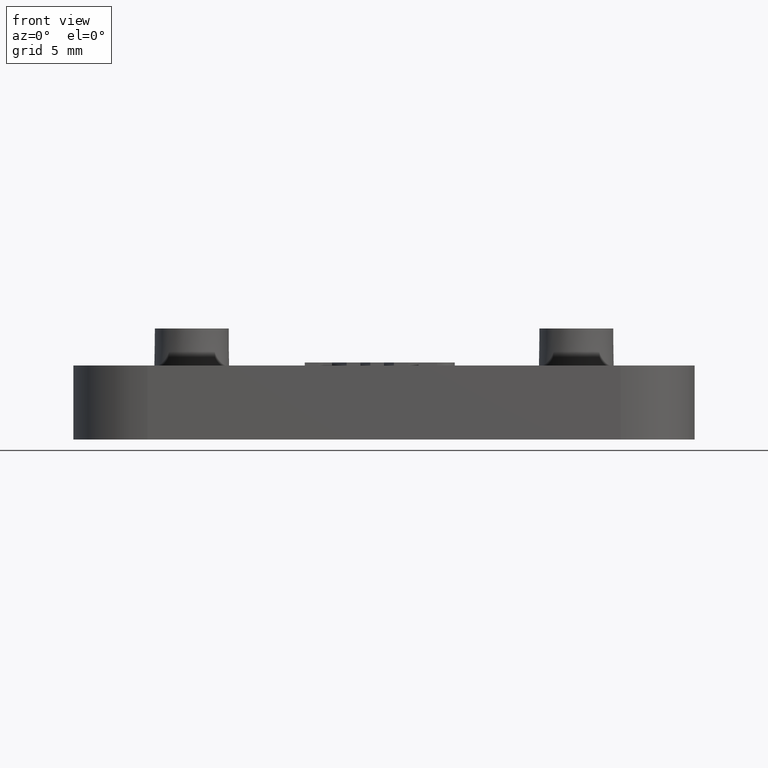
[diagram: clean part render]
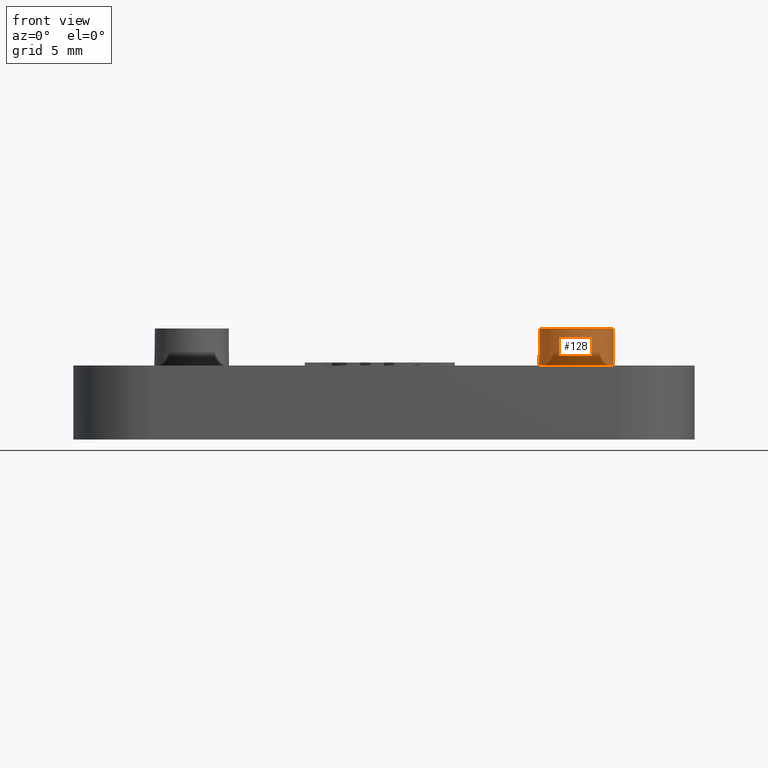
[diagram: same view with one face highlighted and labeled with its STEP entity id]
A machine part, front view. The second image highlights one B-rep face of the part: STEP entity #128.
In plain terms, the highlighted conical surface has half-angle 1 deg.
Its self-contained STEP definition (entity closure, byte-faithful):
#128 = ADVANCED_FACE( '', ( #454, #455 ), #456, .T. );
#454 = FACE_OUTER_BOUND( '', #964, .T. );
#455 = FACE_BOUND( '', #965, .T. );
#456 = CONICAL_SURFACE( '', #966, 2.50000000000000, 0.0174532925199433 );
#964 = EDGE_LOOP( '', ( #1942 ) );
#965 = EDGE_LOOP( '', ( #1943 ) );
#966 = AXIS2_PLACEMENT_3D( '', #1944, #1945, #1946 );
#1942 = ORIENTED_EDGE( '', *, *, #3235, .F. );
#1943 = ORIENTED_EDGE( '', *, *, #3610, .T. );
#1944 = CARTESIAN_POINT( '', ( 13.0000000000000, 2.17542455403785E-015, 7.49999999999999 ) );
#1945 = DIRECTION( '', ( 0.000000000000000, -6.12303176911189E-017, -1.00000000000000 ) );
#1946 = DIRECTION( '', ( 0.000000000000000, 1.00000000000000, -6.12303176911189E-017 ) );
#3235 = EDGE_CURVE( '', #3838, #3838, #3839, .T. );
#3610 = EDGE_CURVE( '', #4558, #4558, #4559, .T. );
#3838 = VERTEX_POINT( '', #4837 );
#3839 = CIRCLE( '', #4838, 2.54363766232054 );
#4558 = VERTEX_POINT( '', #5918 );
#4559 = CIRCLE( '', #5919, 2.50000000000000 );
#4837 = CARTESIAN_POINT( '', ( 13.0000000000000, 2.54363766232055, 4.99999999999999 ) );
#4838 = AXIS2_PLACEMENT_3D( '', #6379, #6380, #6381 );
#5918 = CARTESIAN_POINT( '', ( 15.5000000000000, 2.32850034826565E-015, 7.49999999999999 ) );
#5919 = AXIS2_PLACEMENT_3D( '', #6782, #6783, #6784 );
#6379 = CARTESIAN_POINT( '', ( 13.0000000000000, 2.02234875981005E-015, 4.99999999999999 ) );
#6380 = DIRECTION( '', ( 0.000000000000000, -6.12303176911189E-017, -1.00000000000000 ) );
#6381 = DIRECTION( '', ( 0.000000000000000, 1.00000000000000, -6.12303176911189E-017 ) );
#6782 = CARTESIAN_POINT( '', ( 13.0000000000000, 2.17542455403785E-015, 7.49999999999999 ) );
#6783 = DIRECTION( '', ( -4.37905770101506E-049, -6.12303176911189E-017, -1.00000000000000 ) );
#6784 = DIRECTION( '', ( 1.00000000000000, 6.12303176911188E-017, -3.74915180455534E-033 ) );